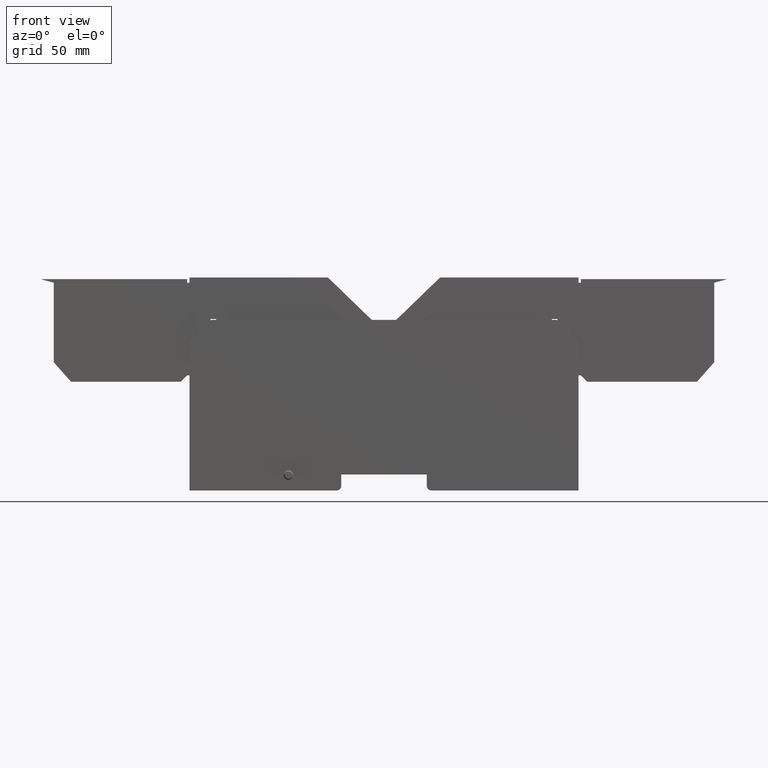
[diagram: clean part render]
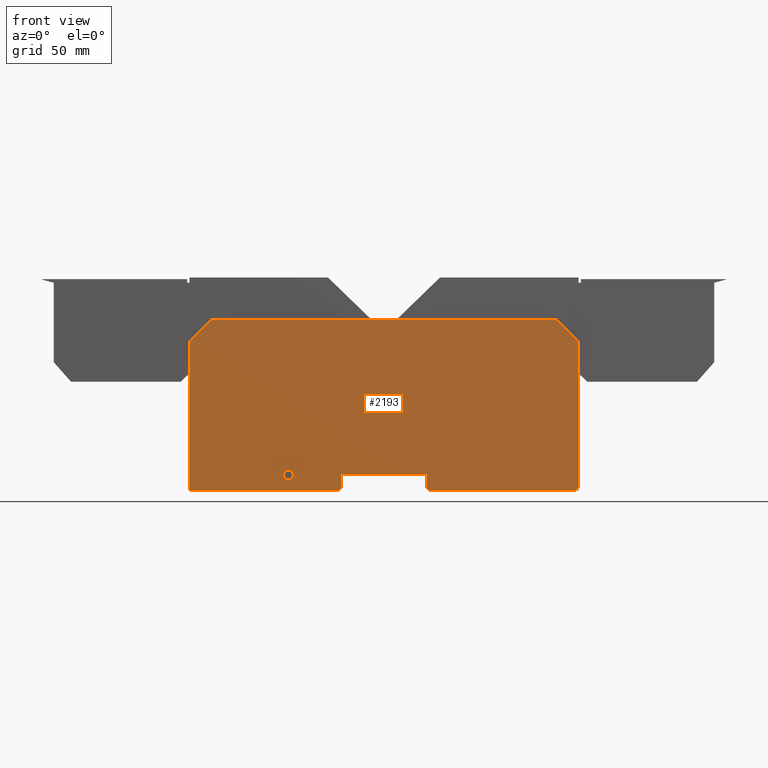
[diagram: same view with one face highlighted and labeled with its STEP entity id]
A machine part, front view. The second image highlights one B-rep face of the part: STEP entity #2193.
In plain terms, the highlighted planar face has unit normal (0, 1, 0).
Its self-contained STEP definition (entity closure, byte-faithful):
#78=CIRCLE('',#2296,2.);
#79=CIRCLE('',#2298,2.);
#89=CIRCLE('',#2320,2.);
#90=CIRCLE('',#2322,2.);
#440=ORIENTED_EDGE('',*,*,#805,.T.);
#441=ORIENTED_EDGE('',*,*,#780,.F.);
#442=ORIENTED_EDGE('',*,*,#804,.T.);
#443=ORIENTED_EDGE('',*,*,#801,.F.);
#444=ORIENTED_EDGE('',*,*,#785,.F.);
#445=ORIENTED_EDGE('',*,*,#813,.F.);
#446=ORIENTED_EDGE('',*,*,#806,.F.);
#447=ORIENTED_EDGE('',*,*,#778,.F.);
#448=ORIENTED_EDGE('',*,*,#809,.F.);
#449=ORIENTED_EDGE('',*,*,#812,.F.);
#450=ORIENTED_EDGE('',*,*,#811,.F.);
#451=ORIENTED_EDGE('',*,*,#735,.F.);
#452=ORIENTED_EDGE('',*,*,#803,.F.);
#453=ORIENTED_EDGE('',*,*,#734,.F.);
#734=EDGE_CURVE('',#1016,#1016,#78,.F.);
#735=EDGE_CURVE('',#1017,#1018,#79,.T.);
#778=EDGE_CURVE('',#1058,#1059,#1254,.T.);
#780=EDGE_CURVE('',#1060,#1061,#1256,.T.);
#785=EDGE_CURVE('',#1063,#1064,#1261,.T.);
#801=EDGE_CURVE('',#1064,#1076,#1277,.T.);
#803=EDGE_CURVE('',#1077,#1017,#1279,.T.);
#804=EDGE_CURVE('',#1060,#1076,#1280,.T.);
#805=EDGE_CURVE('',#1077,#1061,#1281,.T.);
#806=EDGE_CURVE('',#1059,#1078,#1282,.T.);
#809=EDGE_CURVE('',#1079,#1058,#1285,.T.);
#811=EDGE_CURVE('',#1018,#1080,#1287,.T.);
#812=EDGE_CURVE('',#1080,#1079,#89,.T.);
#813=EDGE_CURVE('',#1078,#1063,#90,.T.);
#1016=VERTEX_POINT('',#3145);
#1017=VERTEX_POINT('',#3148);
#1018=VERTEX_POINT('',#3149);
#1058=VERTEX_POINT('',#3233);
#1059=VERTEX_POINT('',#3235);
#1060=VERTEX_POINT('',#3239);
#1061=VERTEX_POINT('',#3240);
#1063=VERTEX_POINT('',#3247);
#1064=VERTEX_POINT('',#3249);
#1076=VERTEX_POINT('',#3277);
#1077=VERTEX_POINT('',#3281);
#1078=VERTEX_POINT('',#3289);
#1079=VERTEX_POINT('',#3293);
#1080=VERTEX_POINT('',#3297);
#1254=LINE('',#3234,#1490);
#1256=LINE('',#3238,#1492);
#1261=LINE('',#3248,#1497);
#1277=LINE('',#3278,#1513);
#1279=LINE('',#3282,#1515);
#1280=LINE('',#3284,#1516);
#1281=LINE('',#3286,#1517);
#1282=LINE('',#3288,#1518);
#1285=LINE('',#3294,#1521);
#1287=LINE('',#3298,#1523);
#1490=VECTOR('',#2594,1000.);
#1492=VECTOR('',#2598,1000.);
#1497=VECTOR('',#2605,1000.);
#1513=VECTOR('',#2623,1000.);
#1515=VECTOR('',#2627,1000.);
#1516=VECTOR('',#2630,1000.);
#1517=VECTOR('',#2633,1000.);
#1518=VECTOR('',#2636,1000.);
#1521=VECTOR('',#2641,1000.);
#1523=VECTOR('',#2645,1000.);
#1791=EDGE_LOOP('',(#440,#441,#442,#443,#444,#445,#446,#447,#448,#449,#450,
#451,#452));
#1792=EDGE_LOOP('',(#453));
#1963=FACE_BOUND('',#1791,.T.);
#1964=FACE_BOUND('',#1792,.T.);
#2066=PLANE('',#2398);
#2193=ADVANCED_FACE('',(#1963,#1964),#2066,.F.);
#2296=AXIS2_PLACEMENT_3D('',#3144,#2533,#2534);
#2298=AXIS2_PLACEMENT_3D('',#3147,#2537,#2538);
#2320=AXIS2_PLACEMENT_3D('',#3300,#2648,#2649);
#2322=AXIS2_PLACEMENT_3D('',#3302,#2652,#2653);
#2398=AXIS2_PLACEMENT_3D('',#3469,#2845,#2846);
#2533=DIRECTION('',(0.,1.,0.));
#2534=DIRECTION('',(0.,0.,1.));
#2537=DIRECTION('',(0.,1.,0.));
#2538=DIRECTION('',(-1.,0.,0.));
#2594=DIRECTION('',(-1.,0.,-2.93192700165094E-16));
#2598=DIRECTION('',(1.,0.,2.37497794771512E-15));
#2605=DIRECTION('',(-1.,0.,-1.16132115546564E-16));
#2623=DIRECTION('',(6.895224150951E-16,0.,1.));
#2627=DIRECTION('',(2.298408050317E-15,0.,-1.));
#2630=DIRECTION('',(-0.707106781186599,0.,-0.707106781186496));
#2633=DIRECTION('',(-0.707106781186606,0.,0.707106781186489));
#2636=DIRECTION('',(6.64362182288991E-15,0.,-1.));
#2641=DIRECTION('',(5.90544162034658E-15,0.,1.));
#2645=DIRECTION('',(-1.,0.,5.69047366178164E-15));
#2648=DIRECTION('',(0.,1.,0.));
#2649=DIRECTION('',(1.,0.,0.));
#2652=DIRECTION('',(0.,1.,0.));
#2653=DIRECTION('',(-1.,0.,0.));
#2845=DIRECTION('',(0.,1.,0.));
#2846=DIRECTION('',(0.,0.,1.));
#3144=CARTESIAN_POINT('',(-40.05,0.,-25.6900000000003));
#3145=CARTESIAN_POINT('',(-40.05,0.,-23.6900000000003));
#3147=CARTESIAN_POINT('',(79.5000000000002,0.,-30.1900000000008));
#3148=CARTESIAN_POINT('',(81.5000000000002,0.,-30.1900000000008));
#3149=CARTESIAN_POINT('',(79.5000000000002,0.,-32.1900000000008));
#3233=CARTESIAN_POINT('',(17.9,0.,-25.4900000000005));
#3234=CARTESIAN_POINT('',(-17.75,0.,-25.4900000000005));
#3235=CARTESIAN_POINT('',(-17.9,0.,-25.4900000000005));
#3238=CARTESIAN_POINT('',(-72.38,0.,39.3099999999995));
#3239=CARTESIAN_POINT('',(-72.38,0.,39.3099999999995));
#3240=CARTESIAN_POINT('',(72.3800000000001,0.,39.3099999999994));
#3247=CARTESIAN_POINT('',(-19.9,0.,-32.1900000000005));
#3248=CARTESIAN_POINT('',(-79.5000000000001,0.,-32.1900000000005));
#3249=CARTESIAN_POINT('',(-81.5000000000002,0.,-32.1900000000009));
#3277=CARTESIAN_POINT('',(-81.5,0.,30.1900000000008));
#3278=CARTESIAN_POINT('',(-81.5,0.,30.1900000000008));
#3281=CARTESIAN_POINT('',(81.5,0.,30.1900000000009));
#3282=CARTESIAN_POINT('',(81.5,0.,30.1900000000009));
#3284=CARTESIAN_POINT('',(-81.5,0.,30.1900000000008));
#3286=CARTESIAN_POINT('',(81.5,0.,30.1900000000009));
#3288=CARTESIAN_POINT('',(-17.9,0.,-25.4900000000005));
#3289=CARTESIAN_POINT('',(-17.9,0.,-30.1900000000005));
#3293=CARTESIAN_POINT('',(17.9,0.,-30.1900000000005));
#3294=CARTESIAN_POINT('',(17.9,0.,-25.4900000000005));
#3297=CARTESIAN_POINT('',(19.9,0.,-32.1900000000005));
#3298=CARTESIAN_POINT('',(19.75,0.,-32.1900000000005));
#3300=CARTESIAN_POINT('',(19.9,0.,-30.1900000000005));
#3302=CARTESIAN_POINT('',(-19.9,0.,-30.1900000000005));
#3469=CARTESIAN_POINT('',(79.5000000000002,0.,-30.1900000000008));